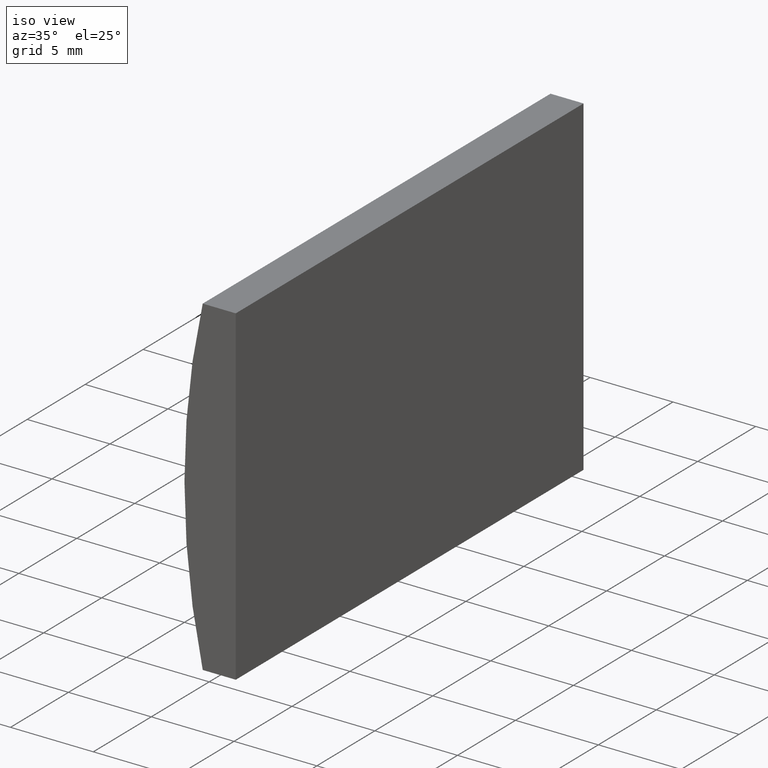
[diagram: clean part render]
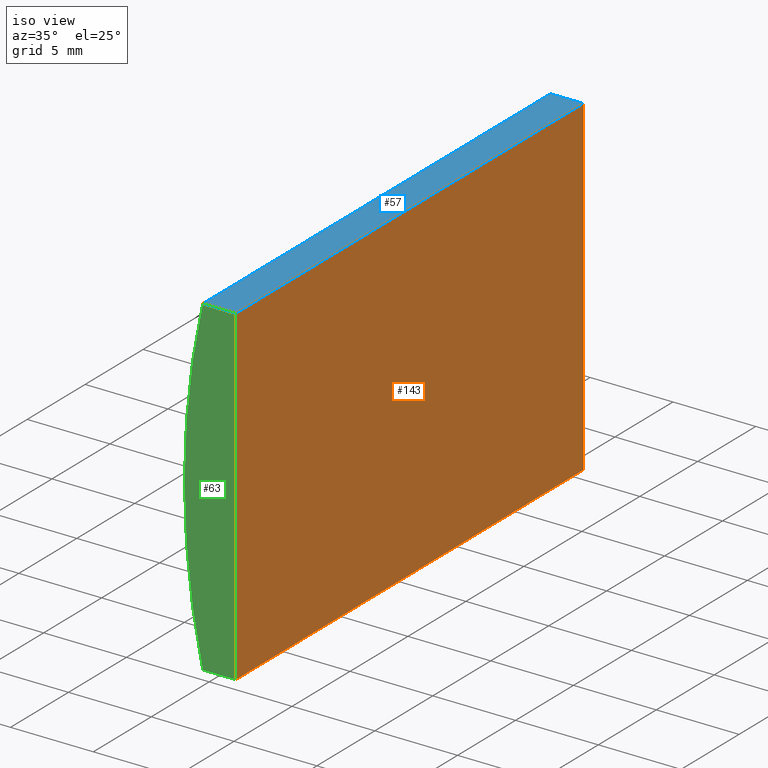
[diagram: same view with three faces highlighted in distinct colors, each labeled with its STEP entity id]
A machine part, iso view with three faces highlighted in distinct colors.
Their STEP definitions:

[orange] entity #143 — the highlighted planar face has unit normal (-1, 0, 0).
#1 = LINE ( 'NONE', #35, #65 ) ;
#7 = CARTESIAN_POINT ( 'NONE',  ( -38.39479566514873500, 30.00000000000000000, 10.00000000000000000 ) ) ;
#11 = VERTEX_POINT ( 'NONE', #84 ) ;
#19 = VERTEX_POINT ( 'NONE', #7 ) ;
#22 = CARTESIAN_POINT ( 'NONE',  ( -38.39479566514874200, 0.0000000000000000000, -9.999999999999992900 ) ) ;
#23 = DIRECTION ( 'NONE',  ( -3.469446951953615200E-016, -0.0000000000000000000, -1.000000000000000000 ) ) ;
#35 = CARTESIAN_POINT ( 'NONE',  ( -38.39479566514874200, 30.00000000000000000, -9.999999999999992900 ) ) ;
#37 = ORIENTED_EDGE ( 'NONE', *, *, #56, .F. ) ;
#39 = CARTESIAN_POINT ( 'NONE',  ( -38.39479566514874200, 30.00000000000000000, -9.999999999999992900 ) ) ;
#43 = VECTOR ( 'NONE', #47, 1000.000000000000000 ) ;
#44 = EDGE_CURVE ( 'NONE', #19, #126, #190, .T. ) ;
#45 = CARTESIAN_POINT ( 'NONE',  ( -38.39479566514873500, 0.0000000000000000000, 10.00000000000000000 ) ) ;
#46 = AXIS2_PLACEMENT_3D ( 'NONE', #74, #141, #135 ) ;
#47 = DIRECTION ( 'NONE',  ( -0.0000000000000000000, -1.000000000000000000, -0.0000000000000000000 ) ) ;
#56 = EDGE_CURVE ( 'NONE', #126, #11, #1, .T. ) ;
#65 = VECTOR ( 'NONE', #93, 1000.000000000000000 ) ;
#73 = EDGE_CURVE ( 'NONE', #19, #144, #110, .T. ) ;
#74 = CARTESIAN_POINT ( 'NONE',  ( -38.39479566514874200, 30.00000000000000000, -9.999999999999992900 ) ) ;
#84 = CARTESIAN_POINT ( 'NONE',  ( -38.39479566514874200, 0.0000000000000000000, -9.999999999999992900 ) ) ;
#93 = DIRECTION ( 'NONE',  ( -0.0000000000000000000, -1.000000000000000000, -0.0000000000000000000 ) ) ;
#100 = ORIENTED_EDGE ( 'NONE', *, *, #44, .F. ) ;
#110 = LINE ( 'NONE', #184, #43 ) ;
#112 = LINE ( 'NONE', #22, #121 ) ;
#120 = PLANE ( 'NONE',  #46 ) ;
#121 = VECTOR ( 'NONE', #146, 1000.000000000000000 ) ;
#124 = ORIENTED_EDGE ( 'NONE', *, *, #203, .T. ) ;
#126 = VERTEX_POINT ( 'NONE', #202 ) ;
#135 = DIRECTION ( 'NONE',  ( 3.469446951953615700E-016, 0.0000000000000000000, 1.000000000000000000 ) ) ;
#138 = FACE_OUTER_BOUND ( 'NONE', #188, .T. ) ;
#141 = DIRECTION ( 'NONE',  ( -1.000000000000000000, 0.0000000000000000000, 3.469446951953615700E-016 ) ) ;
#143 = ADVANCED_FACE ( 'NONE', ( #138 ), #120, .F. ) ;
#144 = VERTEX_POINT ( 'NONE', #45 ) ;
#146 = DIRECTION ( 'NONE',  ( -3.469446951953615200E-016, -0.0000000000000000000, -1.000000000000000000 ) ) ;
#152 = VECTOR ( 'NONE', #23, 1000.000000000000000 ) ;
#178 = ORIENTED_EDGE ( 'NONE', *, *, #73, .T. ) ;
#184 = CARTESIAN_POINT ( 'NONE',  ( -38.39479566514873500, 30.00000000000000000, 10.00000000000000000 ) ) ;
#188 = EDGE_LOOP ( 'NONE', ( #124, #37, #100, #178 ) ) ;
#190 = LINE ( 'NONE', #39, #152 ) ;
#202 = CARTESIAN_POINT ( 'NONE',  ( -38.39479566514874200, 30.00000000000000000, -9.999999999999992900 ) ) ;
#203 = EDGE_CURVE ( 'NONE', #144, #11, #112, .T. ) ;

[blue] entity #57 — the highlighted planar face has unit normal (0, 0, -1).
#2 = VERTEX_POINT ( 'NONE', #10 ) ;
#7 = CARTESIAN_POINT ( 'NONE',  ( -38.39479566514873500, 30.00000000000000000, 10.00000000000000000 ) ) ;
#10 = CARTESIAN_POINT ( 'NONE',  ( -40.39099662120761300, 0.0000000000000000000, 10.00000000000000000 ) ) ;
#12 = LINE ( 'NONE', #62, #139 ) ;
#19 = VERTEX_POINT ( 'NONE', #7 ) ;
#21 = AXIS2_PLACEMENT_3D ( 'NONE', #131, #157, #51 ) ;
#25 = EDGE_CURVE ( 'NONE', #145, #2, #12, .T. ) ;
#31 = ORIENTED_EDGE ( 'NONE', *, *, #199, .F. ) ;
#40 = EDGE_CURVE ( 'NONE', #2, #144, #101, .T. ) ;
#43 = VECTOR ( 'NONE', #47, 1000.000000000000000 ) ;
#45 = CARTESIAN_POINT ( 'NONE',  ( -38.39479566514873500, 0.0000000000000000000, 10.00000000000000000 ) ) ;
#47 = DIRECTION ( 'NONE',  ( -0.0000000000000000000, -1.000000000000000000, -0.0000000000000000000 ) ) ;
#51 = DIRECTION ( 'NONE',  ( -1.000000000000000000, 0.0000000000000000000, -0.0000000000000000000 ) ) ;
#57 = ADVANCED_FACE ( 'NONE', ( #91 ), #155, .F. ) ;
#61 = LINE ( 'NONE', #194, #192 ) ;
#62 = CARTESIAN_POINT ( 'NONE',  ( -40.39099662120761300, 30.00000000000000000, 10.00000000000000000 ) ) ;
#66 = CARTESIAN_POINT ( 'NONE',  ( -40.39099662120761300, 30.00000000000000000, 10.00000000000000000 ) ) ;
#68 = ORIENTED_EDGE ( 'NONE', *, *, #73, .F. ) ;
#73 = EDGE_CURVE ( 'NONE', #19, #144, #110, .T. ) ;
#78 = CARTESIAN_POINT ( 'NONE',  ( -40.39099662120761300, 0.0000000000000000000, 10.00000000000000000 ) ) ;
#91 = FACE_OUTER_BOUND ( 'NONE', #132, .T. ) ;
#97 = VECTOR ( 'NONE', #153, 1000.000000000000000 ) ;
#101 = LINE ( 'NONE', #78, #97 ) ;
#110 = LINE ( 'NONE', #184, #43 ) ;
#129 = DIRECTION ( 'NONE',  ( 1.000000000000000000, 0.0000000000000000000, 0.0000000000000000000 ) ) ;
#131 = CARTESIAN_POINT ( 'NONE',  ( -40.39099662120761300, 30.00000000000000000, 10.00000000000000000 ) ) ;
#132 = EDGE_LOOP ( 'NONE', ( #167, #68, #31, #169 ) ) ;
#139 = VECTOR ( 'NONE', #195, 1000.000000000000000 ) ;
#144 = VERTEX_POINT ( 'NONE', #45 ) ;
#145 = VERTEX_POINT ( 'NONE', #66 ) ;
#153 = DIRECTION ( 'NONE',  ( 1.000000000000000000, 0.0000000000000000000, 0.0000000000000000000 ) ) ;
#155 = PLANE ( 'NONE',  #21 ) ;
#157 = DIRECTION ( 'NONE',  ( 0.0000000000000000000, 0.0000000000000000000, -1.000000000000000000 ) ) ;
#167 = ORIENTED_EDGE ( 'NONE', *, *, #40, .T. ) ;
#169 = ORIENTED_EDGE ( 'NONE', *, *, #25, .T. ) ;
#184 = CARTESIAN_POINT ( 'NONE',  ( -38.39479566514873500, 30.00000000000000000, 10.00000000000000000 ) ) ;
#192 = VECTOR ( 'NONE', #129, 1000.000000000000000 ) ;
#194 = CARTESIAN_POINT ( 'NONE',  ( -40.39099662120761300, 30.00000000000000000, 10.00000000000000000 ) ) ;
#195 = DIRECTION ( 'NONE',  ( -0.0000000000000000000, -1.000000000000000000, -0.0000000000000000000 ) ) ;
#199 = EDGE_CURVE ( 'NONE', #145, #19, #61, .T. ) ;

[green] entity #63 — the highlighted planar face has unit normal (0, 1, 0).
#2 = VERTEX_POINT ( 'NONE', #10 ) ;
#3 = EDGE_LOOP ( 'NONE', ( #180, #17, #72, #103 ) ) ;
#10 = CARTESIAN_POINT ( 'NONE',  ( -40.39099662120761300, 0.0000000000000000000, 10.00000000000000000 ) ) ;
#11 = VERTEX_POINT ( 'NONE', #84 ) ;
#15 = DIRECTION ( 'NONE',  ( 0.0000000000000000000, -0.0000000000000000000, 1.000000000000000000 ) ) ;
#17 = ORIENTED_EDGE ( 'NONE', *, *, #116, .F. ) ;
#22 = CARTESIAN_POINT ( 'NONE',  ( -38.39479566514874200, 0.0000000000000000000, -9.999999999999992900 ) ) ;
#40 = EDGE_CURVE ( 'NONE', #2, #144, #101, .T. ) ;
#41 = DIRECTION ( 'NONE',  ( 0.0000000000000000000, 1.000000000000000000, 0.0000000000000000000 ) ) ;
#45 = CARTESIAN_POINT ( 'NONE',  ( -38.39479566514873500, 0.0000000000000000000, 10.00000000000000000 ) ) ;
#53 = FACE_OUTER_BOUND ( 'NONE', #3, .T. ) ;
#60 = CARTESIAN_POINT ( 'NONE',  ( -40.39099662120761300, 0.0000000000000000000, -10.00000000000000000 ) ) ;
#63 = ADVANCED_FACE ( 'NONE', ( #53 ), #136, .F. ) ;
#72 = ORIENTED_EDGE ( 'NONE', *, *, #203, .F. ) ;
#78 = CARTESIAN_POINT ( 'NONE',  ( -40.39099662120761300, 0.0000000000000000000, 10.00000000000000000 ) ) ;
#80 = CIRCLE ( 'NONE', #130, 45.85000000000005100 ) ;
#84 = CARTESIAN_POINT ( 'NONE',  ( -38.39479566514874200, 0.0000000000000000000, -9.999999999999992900 ) ) ;
#85 = DIRECTION ( 'NONE',  ( 0.0000000000000000000, 0.0000000000000000000, 1.000000000000000000 ) ) ;
#87 = VECTOR ( 'NONE', #102, 1000.000000000000000 ) ;
#90 = EDGE_CURVE ( 'NONE', #109, #2, #80, .T. ) ;
#97 = VECTOR ( 'NONE', #153, 1000.000000000000000 ) ;
#98 = DIRECTION ( 'NONE',  ( 0.0000000000000000000, 1.000000000000000000, 0.0000000000000000000 ) ) ;
#101 = LINE ( 'NONE', #78, #97 ) ;
#102 = DIRECTION ( 'NONE',  ( -1.000000000000000000, -0.0000000000000000000, -3.476049784890796200E-015 ) ) ;
#103 = ORIENTED_EDGE ( 'NONE', *, *, #40, .F. ) ;
#109 = VERTEX_POINT ( 'NONE', #150 ) ;
#112 = LINE ( 'NONE', #22, #121 ) ;
#116 = EDGE_CURVE ( 'NONE', #11, #109, #182, .T. ) ;
#121 = VECTOR ( 'NONE', #146, 1000.000000000000000 ) ;
#130 = AXIS2_PLACEMENT_3D ( 'NONE', #148, #41, #85 ) ;
#136 = PLANE ( 'NONE',  #181 ) ;
#144 = VERTEX_POINT ( 'NONE', #45 ) ;
#146 = DIRECTION ( 'NONE',  ( -3.469446951953615200E-016, -0.0000000000000000000, -1.000000000000000000 ) ) ;
#148 = CARTESIAN_POINT ( 'NONE',  ( 4.355204334851265500, 0.0000000000000000000, 4.286263797015675000E-017 ) ) ;
#150 = CARTESIAN_POINT ( 'NONE',  ( -40.39099662120761300, 0.0000000000000000000, -10.00000000000000000 ) ) ;
#153 = DIRECTION ( 'NONE',  ( 1.000000000000000000, 0.0000000000000000000, 0.0000000000000000000 ) ) ;
#180 = ORIENTED_EDGE ( 'NONE', *, *, #90, .F. ) ;
#181 = AXIS2_PLACEMENT_3D ( 'NONE', #189, #98, #15 ) ;
#182 = LINE ( 'NONE', #60, #87 ) ;
#189 = CARTESIAN_POINT ( 'NONE',  ( 4.355204334851265500, 0.0000000000000000000, 4.286263797015675000E-017 ) ) ;
#203 = EDGE_CURVE ( 'NONE', #144, #11, #112, .T. ) ;